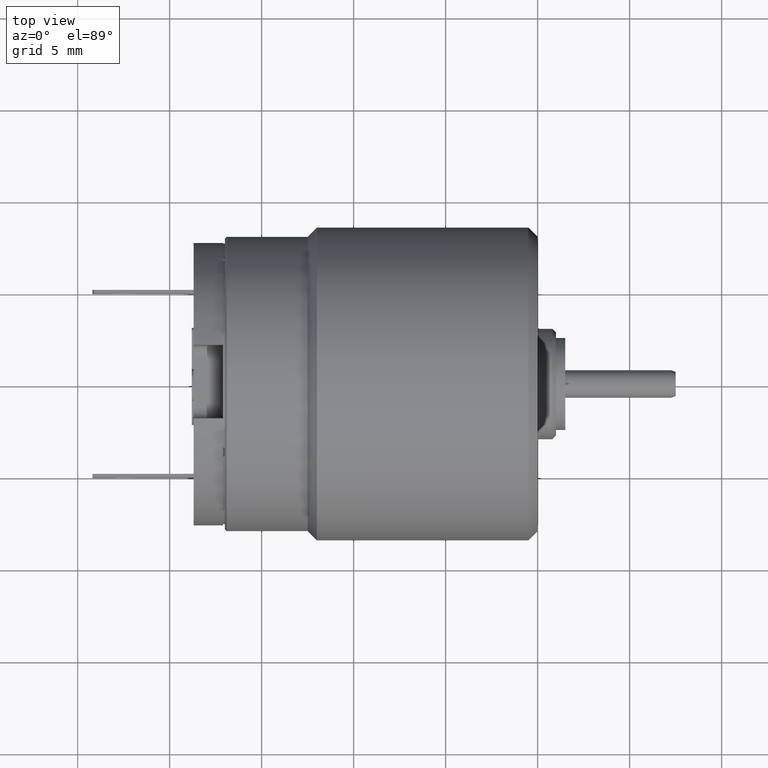
[diagram: clean part render]
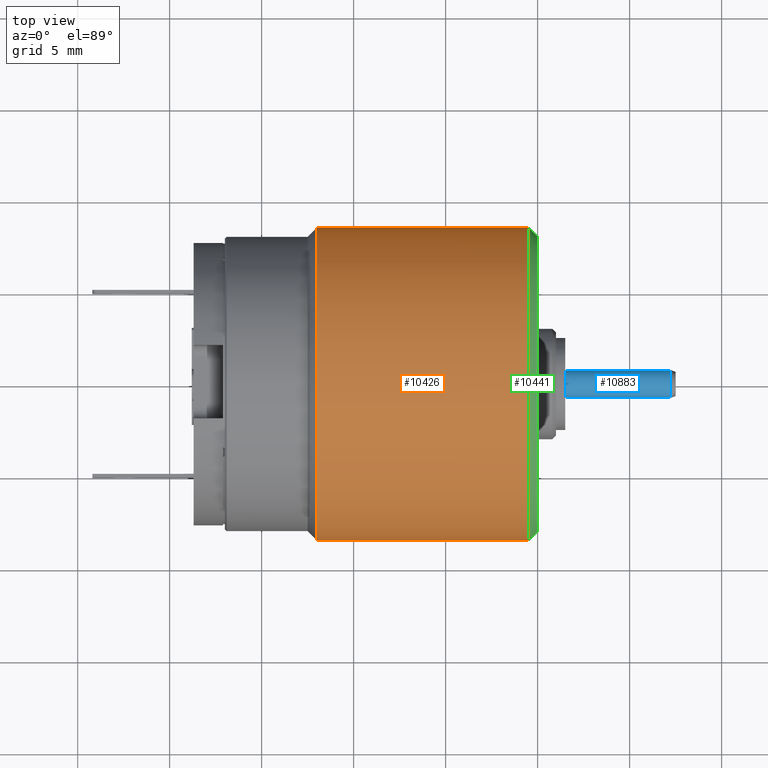
[diagram: same view with three faces highlighted in distinct colors, each labeled with its STEP entity id]
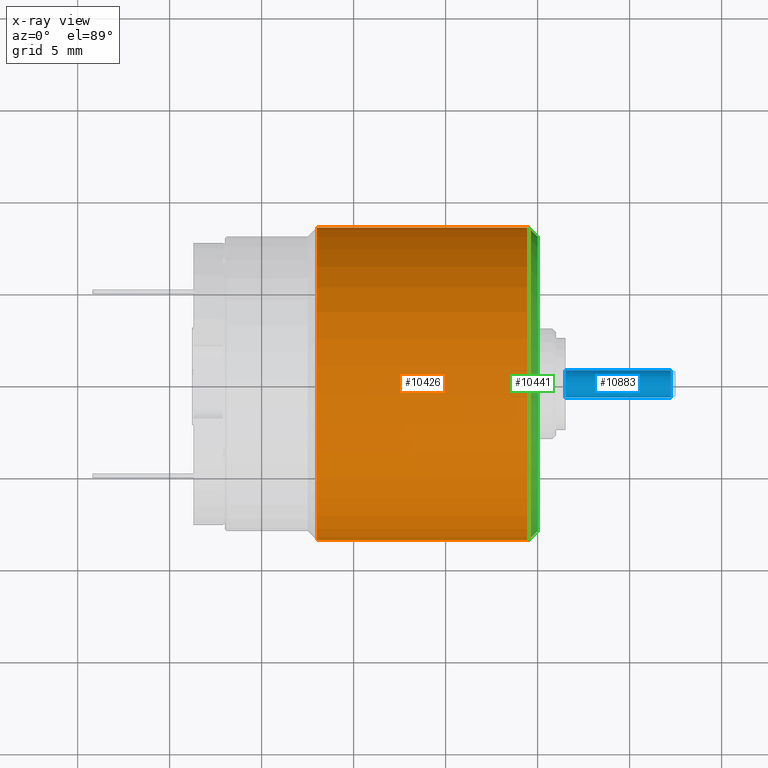
[diagram: x-ray of the same camera — body ghosted, the three highlighted faces saturated]
A machine part, top view with three faces highlighted in distinct colors.
The next image is the same camera in x-ray (body ghosted, the three faces saturated) — at least one of them is partly hidden behind the body in this view.
Their STEP definitions:

[orange] entity #10426 — the highlighted cylindrical surface (partial cylindrical patch) has radius 8.5 mm, axis along (-1, 0, 0).
#3509=CARTESIAN_POINT('',(-1.2E1,0.E0,0.E0));
#3510=DIRECTION('',(1.E0,0.E0,0.E0));
#3511=DIRECTION('',(0.E0,1.E0,0.E0));
#3512=AXIS2_PLACEMENT_3D('',#3509,#3510,#3511);
#3518=CARTESIAN_POINT('',(-5.000012897550E-1,0.E0,0.E0));
#3519=DIRECTION('',(-1.E0,0.E0,0.E0));
#3520=DIRECTION('',(0.E0,-1.E0,0.E0));
#3521=AXIS2_PLACEMENT_3D('',#3518,#3519,#3520);
#3523=DIRECTION('',(-1.E0,7.726778665700E-8,3.172588123644E-11));
#3524=VECTOR('',#3523,1.150000088867E1);
#3525=CARTESIAN_POINT('',(-4.999991113255E-1,-8.500000888580E0,
-3.648495497922E-10));
#3526=LINE('',#3525,#3524);
#3527=DIRECTION('',(-1.E0,-7.726778634807E-8,-3.172616844621E-11));
#3528=VECTOR('',#3527,1.150000088867E1);
#3529=CARTESIAN_POINT('',(-4.999991113255E-1,8.500000888580E0,
3.648509653256E-10));
#3530=LINE('',#3529,#3528);
#4340=CARTESIAN_POINT('',(-1.2E1,8.5E0,0.E0));
#4342=VERTEX_POINT('',#4340);
#4348=CARTESIAN_POINT('',(-1.2E1,-8.5E0,0.E0));
#4350=VERTEX_POINT('',#4348);
#4368=CARTESIAN_POINT('',(-5.000012897550E-1,8.5E0,0.E0));
#4369=CARTESIAN_POINT('',(-5.000012897550E-1,-8.5E0,0.E0));
#4370=VERTEX_POINT('',#4368);
#4371=VERTEX_POINT('',#4369);
#10412=CARTESIAN_POINT('',(8.81E0,0.E0,0.E0));
#10413=DIRECTION('',(-1.E0,0.E0,0.E0));
#10414=DIRECTION('',(0.E0,1.E0,0.E0));
#10415=AXIS2_PLACEMENT_3D('',#10412,#10413,#10414);
#10416=CYLINDRICAL_SURFACE('',#10415,8.5E0);
#10418=ORIENTED_EDGE('',*,*,#10417,.F.);
#10420=ORIENTED_EDGE('',*,*,#10419,.T.);
#10421=ORIENTED_EDGE('',*,*,#10405,.F.);
#10423=ORIENTED_EDGE('',*,*,#10422,.F.);
#10424=EDGE_LOOP('',(#10418,#10420,#10421,#10423));
#10425=FACE_OUTER_BOUND('',#10424,.F.);
#10426=ADVANCED_FACE('',(#10425),#10416,.T.);
#3513=CIRCLE('',#3512,8.5E0);
#3522=CIRCLE('',#3521,8.5E0);
#10405=EDGE_CURVE('',#4342,#4350,#3513,.T.);
#10417=EDGE_CURVE('',#4371,#4370,#3522,.T.);
#10419=EDGE_CURVE('',#4371,#4350,#3526,.T.);
#10422=EDGE_CURVE('',#4370,#4342,#3530,.T.);

[blue] entity #10883 — the highlighted cylindrical surface (edge-blend (fillet) strip) has radius 0.75 mm, axis along (-1, 0, 0).
#3781=CARTESIAN_POINT('',(1.5E0,0.E0,0.E0));
#3782=DIRECTION('',(1.E0,0.E0,0.E0));
#3783=DIRECTION('',(0.E0,1.E0,0.E0));
#3784=AXIS2_PLACEMENT_3D('',#3781,#3782,#3783);
#3801=CARTESIAN_POINT('',(7.241632958315E0,0.E0,0.E0));
#3802=DIRECTION('',(-1.E0,0.E0,0.E0));
#3803=DIRECTION('',(0.E0,-1.E0,0.E0));
#3804=AXIS2_PLACEMENT_3D('',#3801,#3802,#3803);
#3806=DIRECTION('',(-1.E0,0.E0,-1.058294362404E-11));
#3807=VECTOR('',#3806,5.741632869598E0);
#3808=CARTESIAN_POINT('',(7.241632869598E0,-7.500000000001E-1,
6.076326594662E-11));
#3809=LINE('',#3808,#3807);
#3810=DIRECTION('',(-1.E0,0.E0,1.058292368342E-11));
#3811=VECTOR('',#3810,5.741632869598E0);
#3812=CARTESIAN_POINT('',(7.241632869598E0,7.5E-1,-6.076326247717E-11));
#3813=LINE('',#3812,#3811);
#4356=CARTESIAN_POINT('',(1.5E0,7.5E-1,0.E0));
#4357=CARTESIAN_POINT('',(1.5E0,-7.500000000001E-1,0.E0));
#4358=VERTEX_POINT('',#4356);
#4359=VERTEX_POINT('',#4357);
#4432=CARTESIAN_POINT('',(7.241632958315E0,7.5E-1,0.E0));
#4433=CARTESIAN_POINT('',(7.241632958315E0,-7.500000000001E-1,0.E0));
#4434=VERTEX_POINT('',#4432);
#4435=VERTEX_POINT('',#4433);
#10872=CARTESIAN_POINT('',(8.81E0,0.E0,0.E0));
#10873=DIRECTION('',(-1.E0,0.E0,0.E0));
#10874=DIRECTION('',(0.E0,1.E0,0.E0));
#10875=AXIS2_PLACEMENT_3D('',#10872,#10873,#10874);
#10876=CYLINDRICAL_SURFACE('',#10875,7.500000000001E-1);
#10877=ORIENTED_EDGE('',*,*,#10863,.F.);
#10878=ORIENTED_EDGE('',*,*,#10838,.T.);
#10879=ORIENTED_EDGE('',*,*,#10823,.F.);
#10880=ORIENTED_EDGE('',*,*,#10835,.F.);
#10881=EDGE_LOOP('',(#10877,#10878,#10879,#10880));
#10882=FACE_OUTER_BOUND('',#10881,.F.);
#10883=ADVANCED_FACE('',(#10882),#10876,.T.);
#3785=CIRCLE('',#3784,7.500000000001E-1);
#3805=CIRCLE('',#3804,7.500000000001E-1);
#10823=EDGE_CURVE('',#4358,#4359,#3785,.T.);
#10835=EDGE_CURVE('',#4434,#4358,#3813,.T.);
#10838=EDGE_CURVE('',#4435,#4359,#3809,.T.);
#10863=EDGE_CURVE('',#4435,#4434,#3805,.T.);

[green] entity #10441 — the highlighted conical surface has half-angle 45 deg.
#3518=CARTESIAN_POINT('',(-5.000012897550E-1,0.E0,0.E0));
#3519=DIRECTION('',(-1.E0,0.E0,0.E0));
#3520=DIRECTION('',(0.E0,-1.E0,0.E0));
#3521=AXIS2_PLACEMENT_3D('',#3518,#3519,#3520);
#3531=DIRECTION('',(7.071071015239E-1,7.071064608490E-1,-1.315239844067E-10));
#3532=VECTOR('',#3531,7.071067812037E-1);
#3533=CARTESIAN_POINT('',(-4.999991113255E-1,-8.500000888580E0,
-3.648495497922E-10));
#3534=LINE('',#3533,#3532);
#3535=DIRECTION('',(7.071071015239E-1,-7.071064608490E-1,1.315230724033E-10));
#3536=VECTOR('',#3535,7.071067812037E-1);
#3537=CARTESIAN_POINT('',(-4.999991113255E-1,8.500000888580E0,
3.648509653256E-10));
#3538=LINE('',#3537,#3536);
#3549=CARTESIAN_POINT('',(2.273163620892E-6,-2.566566778632E-14,0.E0));
#3550=DIRECTION('',(-1.E0,0.E0,0.E0));
#3551=DIRECTION('',(0.E0,-1.E0,0.E0));
#3552=AXIS2_PLACEMENT_3D('',#3549,#3550,#3551);
#4368=CARTESIAN_POINT('',(-5.000012897550E-1,8.5E0,0.E0));
#4369=CARTESIAN_POINT('',(-5.000012897550E-1,-8.5E0,0.E0));
#4370=VERTEX_POINT('',#4368);
#4371=VERTEX_POINT('',#4369);
#4372=CARTESIAN_POINT('',(2.273163630753E-6,8.000001072256E0,0.E0));
#4373=CARTESIAN_POINT('',(2.273163628794E-6,-8.000001072256E0,0.E0));
#4374=VERTEX_POINT('',#4372);
#4375=VERTEX_POINT('',#4373);
#10427=CARTESIAN_POINT('',(-2.499985344372E-1,-2.563505252857E-14,0.E0));
#10428=DIRECTION('',(-1.E0,0.E0,0.E0));
#10429=DIRECTION('',(0.E0,0.E0,-1.E0));
#10430=AXIS2_PLACEMENT_3D('',#10427,#10428,#10429);
#10431=CONICAL_SURFACE('',#10430,8.250001984401E0,4.500001197990E1);
#10432=ORIENTED_EDGE('',*,*,#10417,.T.);
#10434=ORIENTED_EDGE('',*,*,#10433,.T.);
#10436=ORIENTED_EDGE('',*,*,#10435,.F.);
#10438=ORIENTED_EDGE('',*,*,#10437,.F.);
#10439=EDGE_LOOP('',(#10432,#10434,#10436,#10438));
#10440=FACE_OUTER_BOUND('',#10439,.F.);
#10441=ADVANCED_FACE('',(#10440),#10431,.T.);
#3522=CIRCLE('',#3521,8.5E0);
#3553=CIRCLE('',#3552,8.000001072256E0);
#10417=EDGE_CURVE('',#4371,#4370,#3522,.T.);
#10433=EDGE_CURVE('',#4370,#4374,#3538,.T.);
#10435=EDGE_CURVE('',#4375,#4374,#3553,.T.);
#10437=EDGE_CURVE('',#4371,#4375,#3534,.T.);